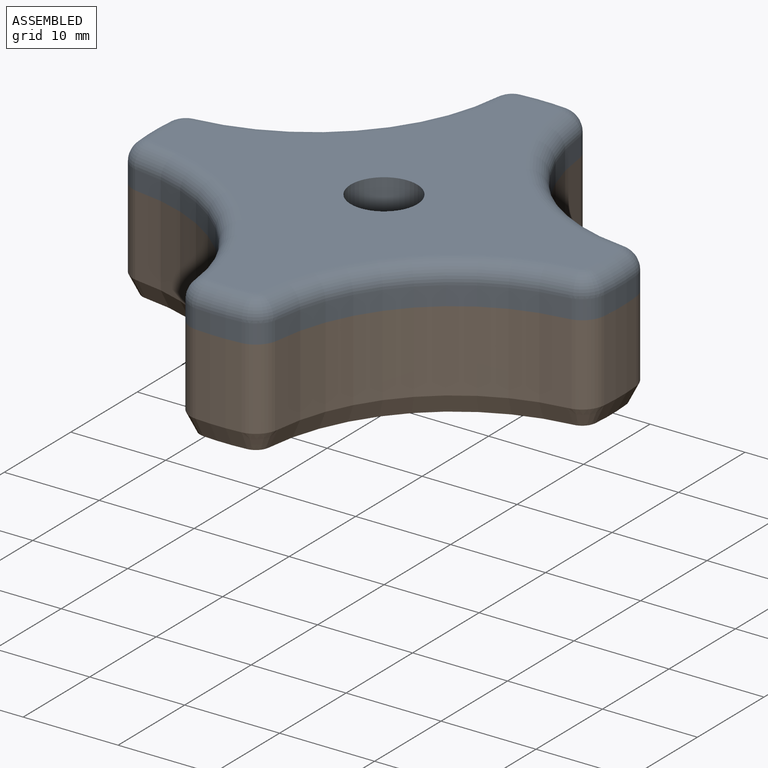
[diagram: assembled view]
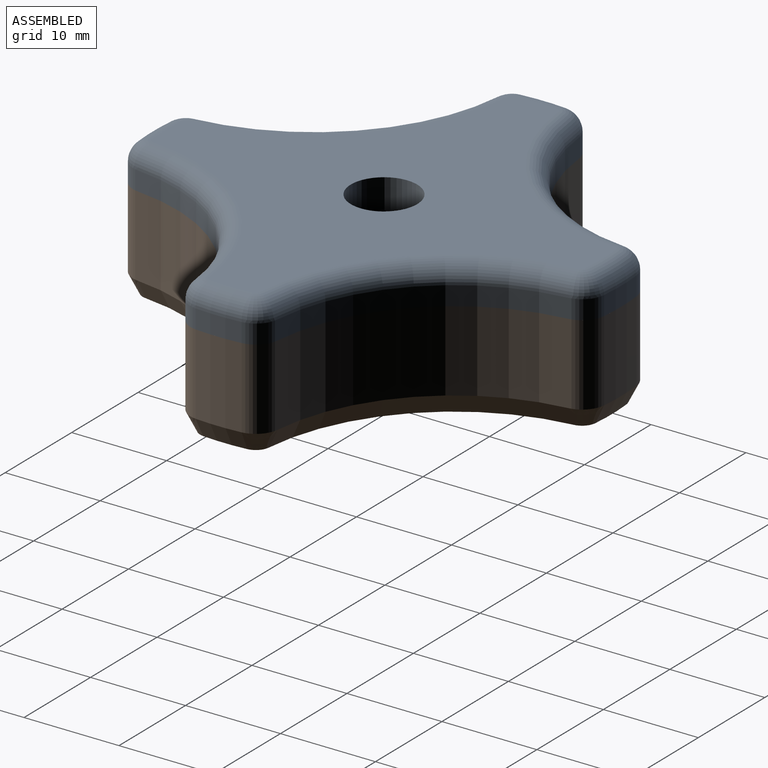
[diagram: assembled view, second angle]
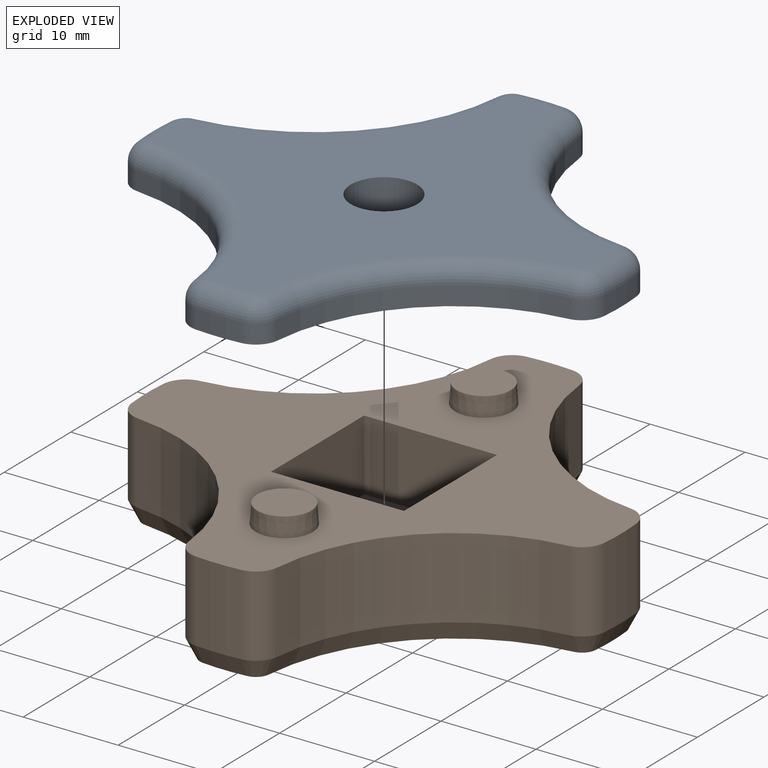
[diagram: exploded view]
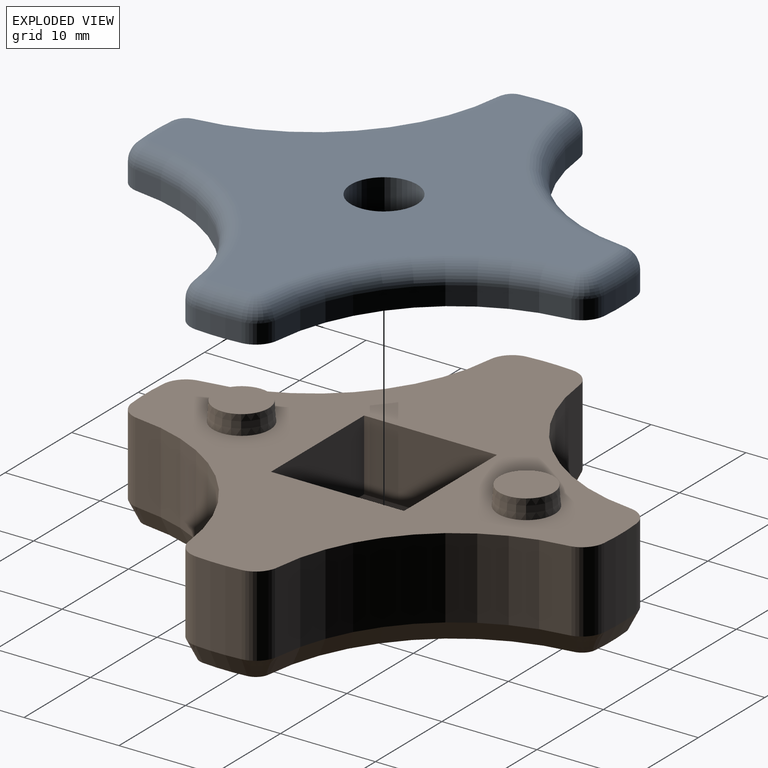
[diagram: exploded view, second angle]
ASSEMBLY  parts=2 mates=3
PART A: 39 faces, bbox 50.2x50.2x4 mm
  f0: plane 50x50mm, normal (0,0,1), area 1068.1mm2, adj f1,f2,f3,f4,f5,f6,f7,f8
  f1: cylinder r=20mm len=17.96mm, axis (0,0,-1), area 55.1mm2, adj f0,f11,f18,f23
  f2: cylinder r=25mm len=4.85mm, axis (0,0,-1), area 9.7mm2, adj f0,f11,f12,f27
  f3: cylinder r=20mm len=17.96mm, axis (0,0,-1), area 55.1mm2, adj f0,f12,f13,f31
  f4: cylinder r=25mm len=4.85mm, axis (0,0,-1), area 9.7mm2, adj f0,f13,f14,f35
  f5: cylinder r=20mm len=17.96mm, axis (0,0,-1), area 55.1mm2, adj f0,f14,f15,f38
  f6: cylinder r=25mm len=4.85mm, axis (0,0,-1), area 9.7mm2, adj f0,f15,f16,f34
  f7: cylinder r=20mm len=17.96mm, axis (0,0,-1), area 55.1mm2, adj f0,f16,f17,f30
  f8: cylinder r=3.5mm len=7mm, axis (0,0,-1), area 88mm2, adj f0,f10
  f9: cylinder r=25mm len=4.85mm, axis (0,0,-1), area 9.7mm2, adj f0,f17,f18,f26
  f10: plane 46x46mm, normal (0,0,-1), area 823.1mm2, adj f8,f23,f24,f25,f26,f27,f28,f29
  f11: cylinder r=2.5mm len=2.25mm, axis (0,0,1), area 6.9mm2, adj f0,f1,f2,f25
  f12: cylinder r=2.5mm len=2.25mm, axis (0,0,1), area 6.9mm2, adj f0,f2,f3,f29
  f13: cylinder r=2.5mm len=2.25mm, axis (0,0,1), area 6.9mm2, adj f0,f3,f4,f33
  f14: cylinder r=2.5mm len=2.25mm, axis (0,0,1), area 6.9mm2, adj f0,f4,f5,f37
  f15: cylinder r=2.5mm len=2.25mm, axis (0,0,1), area 6.9mm2, adj f0,f5,f6,f36
  f16: cylinder r=2.5mm len=2.25mm, axis (0,0,1), area 6.9mm2, adj f0,f6,f7,f32
  f17: cylinder r=2.5mm len=2.25mm, axis (0,0,1), area 6.9mm2, adj f0,f7,f9,f28
  f18: cylinder r=2.5mm len=2.25mm, axis (0,0,1), area 6.9mm2, adj f0,f1,f9,f24
  f19: cylinder r=3mm len=6mm, axis (0,0,1), area 56.5mm2, adj f0,f20
  f20: plane 6x6mm, normal (0,0,1), area 28.3mm2, adj f19
  f21: cylinder r=3mm len=6mm, axis (0,0,1), area 56.5mm2, adj f0,f22
  f22: plane 6x6mm, normal (0,0,1), area 28.3mm2, adj f21
  f23: torus R=22mm, axis (0,0,1), area 89.6mm2, adj f1,f10,f24,f25
  f24: torus R=0.5mm, axis (0,0,1), area 7.7mm2, adj f10,f18,f23,f26
  f25: torus R=0.5mm, axis (0,0,1), area 7.7mm2, adj f10,f11,f23,f27
  f26: torus R=23mm, axis (0,0,1), area 14.8mm2, adj f9,f10,f24,f28
  f27: torus R=23mm, axis (0,0,1), area 14.8mm2, adj f2,f10,f25,f29
  f28: torus R=0.5mm, axis (0,0,1), area 7.7mm2, adj f10,f17,f26,f30
  f29: torus R=0.5mm, axis (0,0,1), area 7.7mm2, adj f10,f12,f27,f31
  f30: torus R=22mm, axis (0,0,1), area 89.6mm2, adj f7,f10,f28,f32
  f31: torus R=22mm, axis (0,0,1), area 89.6mm2, adj f3,f10,f29,f33
  f32: torus R=0.5mm, axis (0,0,1), area 7.7mm2, adj f10,f16,f30,f34
  f33: torus R=0.5mm, axis (0,0,1), area 7.7mm2, adj f10,f13,f31,f35
  f34: torus R=23mm, axis (0,0,1), area 14.8mm2, adj f6,f10,f32,f36
  f35: torus R=23mm, axis (0,0,1), area 14.8mm2, adj f4,f10,f33,f37
  f36: torus R=0.5mm, axis (0,0,1), area 7.7mm2, adj f10,f15,f34,f38
  f37: torus R=0.5mm, axis (0,0,1), area 7.7mm2, adj f10,f14,f35,f38
  f38: torus R=22mm, axis (0,0,1), area 89.6mm2, adj f5,f10,f36,f37
PART B: 44 faces, bbox 50x50x12.5 mm
  f0: plane 14x7.5mm, normal (1,0,0), area 105mm2, adj f1,f3,f12,f14
  f1: plane 14x7.5mm, normal (0,-1,0), area 105mm2, adj f0,f2,f12,f14
  f2: plane 14x7.5mm, normal (-1,0,0), area 105mm2, adj f1,f3,f12,f14
  f3: plane 14x7.5mm, normal (0,1,0), area 105mm2, adj f0,f2,f12,f14
  f4: cylinder r=20mm len=17.96mm, axis (0,0,-1), area 234mm2, adj f12,f16,f23,f31
  f5: cylinder r=25mm len=8.5mm, axis (0,0,-1), area 41.3mm2, adj f12,f16,f17,f27
  f6: cylinder r=20mm len=17.96mm, axis (0,0,-1), area 234mm2, adj f12,f17,f18,f24
  f7: cylinder r=25mm len=8.5mm, axis (0,0,-1), area 41.3mm2, adj f12,f18,f19,f28
  f8: cylinder r=20mm len=17.96mm, axis (0,0,-1), area 234mm2, adj f12,f19,f20,f32
  f9: cylinder r=25mm len=8.5mm, axis (0,0,-1), area 41.3mm2, adj f12,f20,f21,f36
  f10: cylinder r=20mm len=17.96mm, axis (0,0,-1), area 234mm2, adj f12,f21,f22,f39
  f11: cylinder r=25mm len=8.5mm, axis (0,0,-1), area 41.3mm2, adj f12,f22,f23,f35
  f12: plane 50x50mm, normal (0,0,1), area 910.6mm2, adj f0,f1,f2,f3,f4,f5,f6,f7
  f13: plane 48x48mm, normal (0,0,-1), area 970.7mm2, adj f15,f24,f25,f26,f27,f28,f29,f30
  f14: plane 14x14mm, normal (0,0,1), area 157.5mm2, adj f0,f1,f2,f3,f15
  f15: cylinder r=3.5mm len=7mm, axis (0,0,-1), area 66mm2, adj f13,f14
  f16: cylinder r=2.5mm len=8.5mm, axis (0,0,1), area 29.2mm2, adj f4,f5,f12,f29
  f17: cylinder r=2.5mm len=8.5mm, axis (0,0,1), area 29.2mm2, adj f5,f6,f12,f25
  f18: cylinder r=2.5mm len=8.5mm, axis (0,0,1), area 29.2mm2, adj f6,f7,f12,f26
  f19: cylinder r=2.5mm len=8.5mm, axis (0,0,1), area 29.2mm2, adj f7,f8,f12,f30
  f20: cylinder r=2.5mm len=8.5mm, axis (0,0,1), area 29.2mm2, adj f8,f9,f12,f34
  f21: cylinder r=2.5mm len=8.5mm, axis (0,0,1), area 29.2mm2, adj f9,f10,f12,f38
  f22: cylinder r=2.5mm len=8.5mm, axis (0,0,1), area 29.2mm2, adj f10,f11,f12,f37
  f23: cylinder r=2.5mm len=8.5mm, axis (0,0,1), area 29.2mm2, adj f4,f11,f12,f33
  f24: cone r=21mm half-angle=26.6deg, axis (0,0,-1), area 63.1mm2, adj f6,f13,f25,f26
  f25: cone r=1.5mm half-angle=26.6deg, axis (0,0,1), area 6.2mm2, adj f13,f17,f24,f27
  f26: cone r=1.5mm half-angle=26.6deg, axis (0,0,1), area 6.2mm2, adj f13,f18,f24,f28
  f27: cone r=25mm half-angle=26.6deg, axis (0,0,1), area 10.7mm2, adj f5,f13,f25,f29
  f28: cone r=25mm half-angle=26.6deg, axis (0,0,1), area 10.7mm2, adj f7,f13,f26,f30
  f29: cone r=1.5mm half-angle=26.6deg, axis (0,0,1), area 6.2mm2, adj f13,f16,f27,f31
  f30: cone r=1.5mm half-angle=26.6deg, axis (0,0,1), area 6.2mm2, adj f13,f19,f28,f32
  f31: cone r=21mm half-angle=26.6deg, axis (0,0,-1), area 63.1mm2, adj f4,f13,f29,f33
  f32: cone r=21mm half-angle=26.6deg, axis (0,0,-1), area 63.1mm2, adj f8,f13,f30,f34
  f33: cone r=1.5mm half-angle=26.6deg, axis (0,0,1), area 6.2mm2, adj f13,f23,f31,f35
  f34: cone r=1.5mm half-angle=26.6deg, axis (0,0,1), area 6.2mm2, adj f13,f20,f32,f36
  f35: cone r=25mm half-angle=26.6deg, axis (0,0,1), area 10.7mm2, adj f11,f13,f33,f37
  f36: cone r=25mm half-angle=26.6deg, axis (0,0,1), area 10.7mm2, adj f9,f13,f34,f38
  f37: cone r=1.5mm half-angle=26.6deg, axis (0,0,1), area 6.2mm2, adj f13,f22,f35,f39
  f38: cone r=1.5mm half-angle=26.6deg, axis (0,0,1), area 6.2mm2, adj f13,f21,f36,f39
  f39: cone r=21mm half-angle=26.6deg, axis (0,0,-1), area 63.1mm2, adj f10,f13,f37,f38
  f40: cone r=3mm half-angle=4deg, axis (0,0,-1), area 36.9mm2, adj f12,f41
  f41: plane 5.72x5.72mm, normal (0,0,1), area 25.7mm2, adj f40
  f42: cone r=3mm half-angle=4deg, axis (0,0,-1), area 36.9mm2, adj f12,f43
  f43: plane 5.72x5.72mm, normal (0,0,1), area 25.7mm2, adj f42
PLACE A rot(axis=(0,1,0),180deg) t=(0.04,-0.07,7.36)mm
PLACE B t=(0.04,-0.07,-7.14)mm fixed
MATE cylindrical A.f21 <-> B.f40  axis (0,0,-1) through (0.04,14.93,4.86)mm
MATE cylindrical A.f19 <-> B.f42  axis (0,0,-1) through (0.04,-15.07,4.86)mm
MATE planar A.f8 <-> B.f15  axis (0,0,-1) through (0.04,-0.07,3.36)mm
